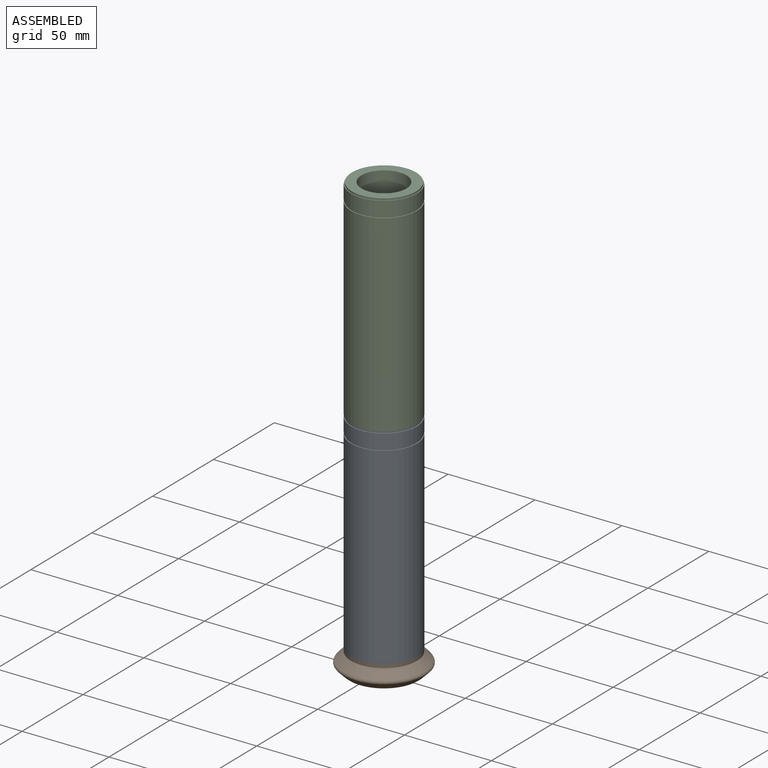
[diagram: assembled view]
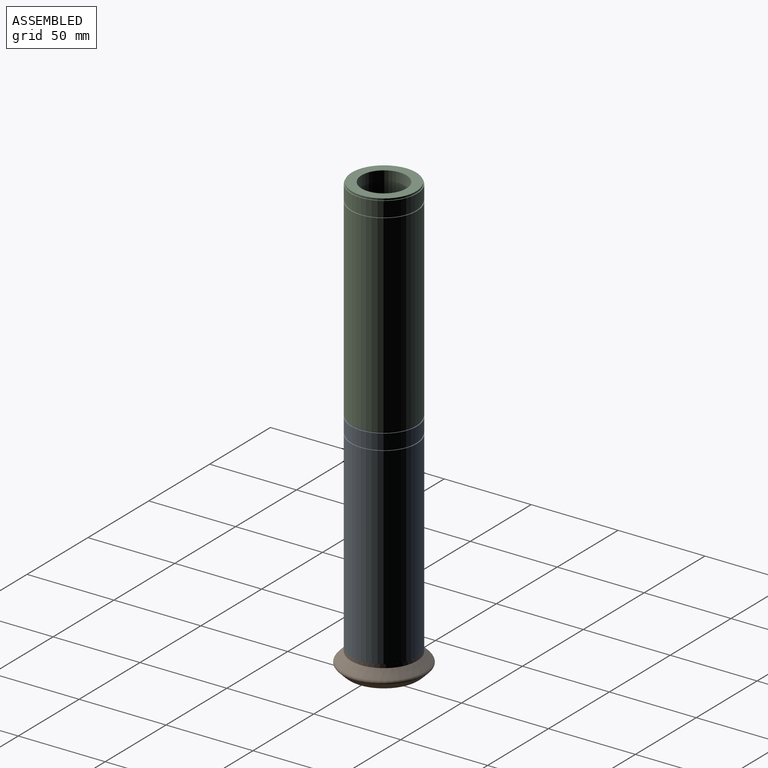
[diagram: assembled view, second angle]
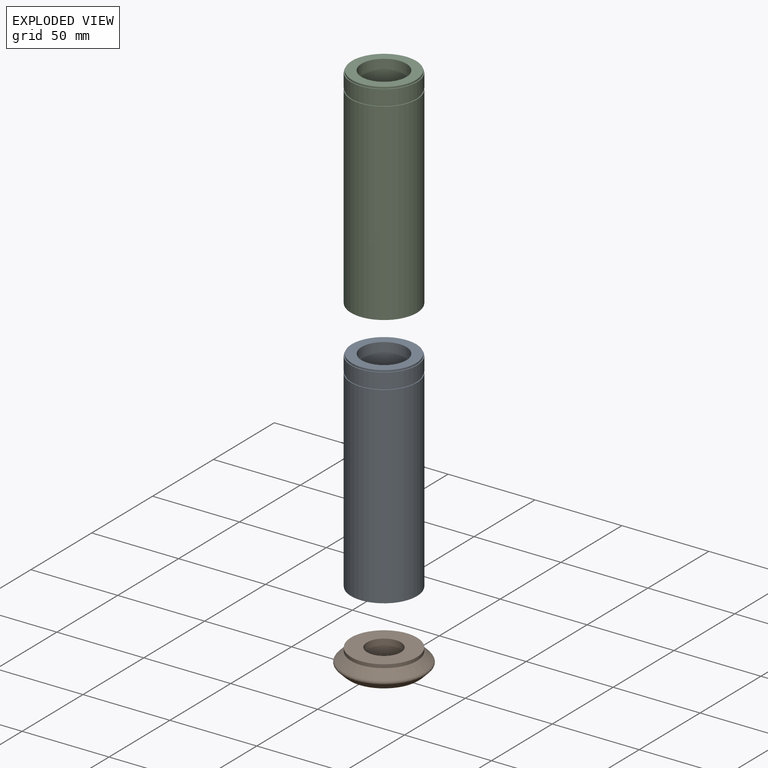
[diagram: exploded view]
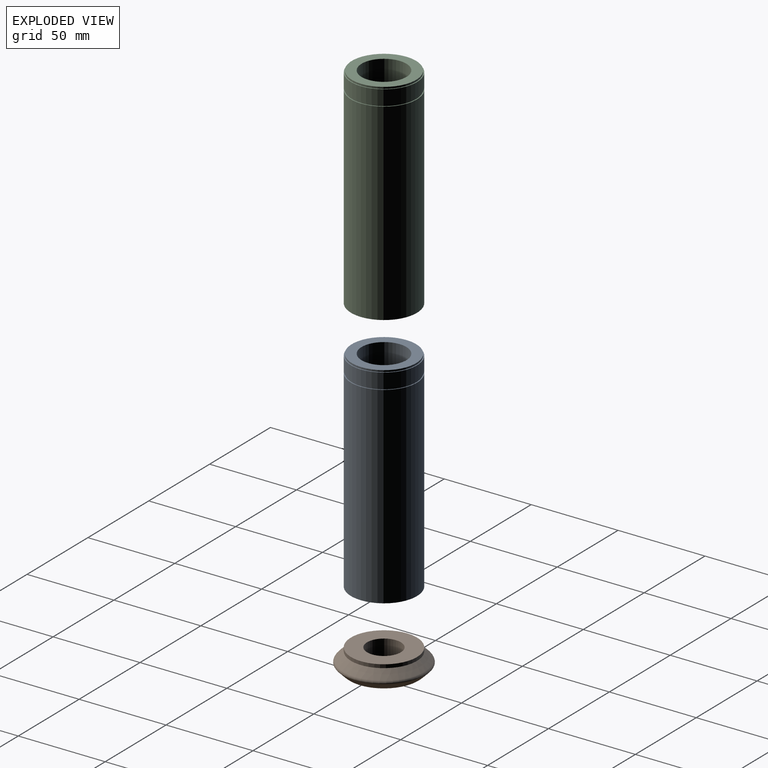
[diagram: exploded view, second angle]
ASSEMBLY  parts=3 mates=2
PART A: 12 faces, bbox 38x38x121 mm
  f0: cylinder r=9.75mm len=66mm, axis (0,0,1), area 4043.2mm2, adj f3,f11
  f1: cylinder r=19mm len=111mm, axis (0,0,-1), area 13251.2mm2, adj f2,f3
  f2: plane 38x38mm, normal (0,0,1), area 58.9mm2, adj f1,f4
  f3: plane 38x38mm, normal (0,0,-1), area 835.5mm2, adj f0,f1
  f4: cylinder r=18.5mm len=37mm, axis (0,0,-1), area 116.2mm2, adj f2,f7
  f5: cylinder r=19mm len=38mm, axis (0,0,-1), area 955mm2, adj f6,f7
  f6: plane 38x38mm, normal (0,0,1), area 58.9mm2, adj f5,f8
  f7: plane 38x38mm, normal (0,0,-1), area 58.9mm2, adj f4,f5
  f8: cylinder r=18.5mm len=37mm, axis (0,0,-1), area 116.2mm2, adj f6,f9
  f9: plane 37x37mm, normal (0,0,1), area 552.4mm2, adj f8,f10
  f10: cylinder r=12.9mm len=55mm, axis (0,0,1), area 4457.9mm2, adj f9,f11
  f11: plane 25.8x25.8mm, normal (0,0,1), area 224.1mm2, adj f0,f10
PART B: 9 faces, bbox 52x52x13 mm
  f0: cylinder r=19mm len=38mm, axis (0,0,-1), area 238.8mm2, adj f1,f5
  f1: plane 38x38mm, normal (0,0,-1), area 835.5mm2, adj f0,f3
  f2: plane 33.86x33.86mm, normal (0,0,1), area 601.7mm2, adj f3,f8
  f3: cylinder r=9.75mm len=19.5mm, axis (0,0,1), area 796.4mm2, adj f1,f2
  f4: cone r=19mm half-angle=45deg, axis (0,0,-1), area 631.3mm2, adj f7,f8
  f5: cone r=24mm half-angle=45deg, axis (0,0,1), area 831.8mm2, adj f0,f6
  f6: torus R=22mm, axis (0,0,-1), area 168.5mm2, adj f5,f7
  f7: torus R=22.98mm, axis (0,0,1), area 151mm2, adj f4,f6
  f8: torus R=16.93mm, axis (0,0,1), area 463.7mm2, adj f2,f4
PART C: 10 faces, bbox 38x38x121 mm
  f0: cylinder r=19mm len=111mm, axis (0,0,-1), area 13251.2mm2, adj f1,f2
  f1: plane 38x38mm, normal (0,0,1), area 58.9mm2, adj f0,f3
  f2: plane 38x38mm, normal (0,0,-1), area 611.3mm2, adj f0,f4
  f3: cylinder r=18.5mm len=37mm, axis (0,0,-1), area 116.2mm2, adj f1,f7
  f4: cylinder r=12.9mm len=121mm, axis (0,0,1), area 9807.4mm2, adj f2,f9
  f5: cylinder r=19mm len=38mm, axis (0,0,-1), area 955mm2, adj f6,f7
  f6: plane 38x38mm, normal (0,0,1), area 58.9mm2, adj f5,f8
  f7: plane 38x38mm, normal (0,0,-1), area 58.9mm2, adj f3,f5
  f8: cylinder r=18.5mm len=37mm, axis (0,0,-1), area 116.2mm2, adj f6,f9
  f9: plane 37x37mm, normal (0,0,1), area 552.4mm2, adj f4,f8
PLACE A t=(-26.9,-28.42,-88.57)mm
PLACE B rot(axis=(0,-1,0),180deg) t=(-26.9,-28.42,-88.57)mm
PLACE C t=(-26.9,-28.42,32.43)mm
MATE fastened A.f8 <-> C.f0  axis (0,0,1) through (-26.9,-28.42,32.43)mm
MATE fastened A.f0 <-> B.f3  axis (0,0,-1) through (-26.9,-28.42,-88.57)mm
